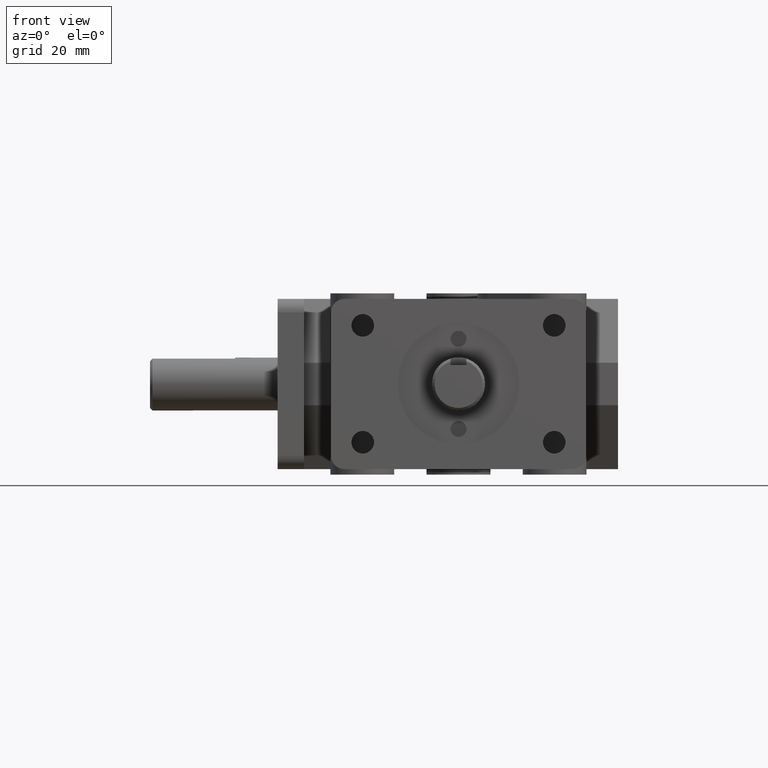
[diagram: clean part render]
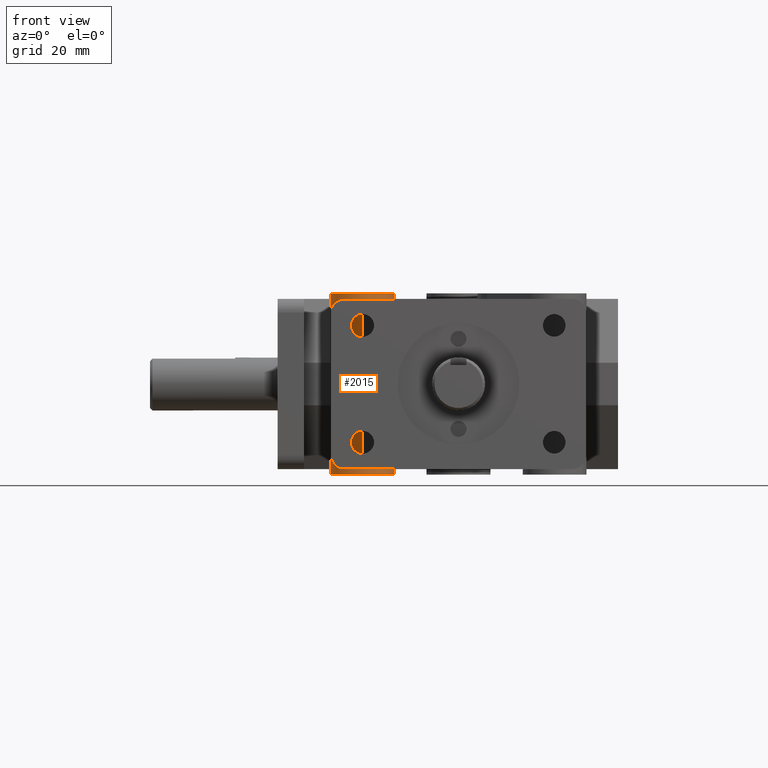
[diagram: same view with one face highlighted and labeled with its STEP entity id]
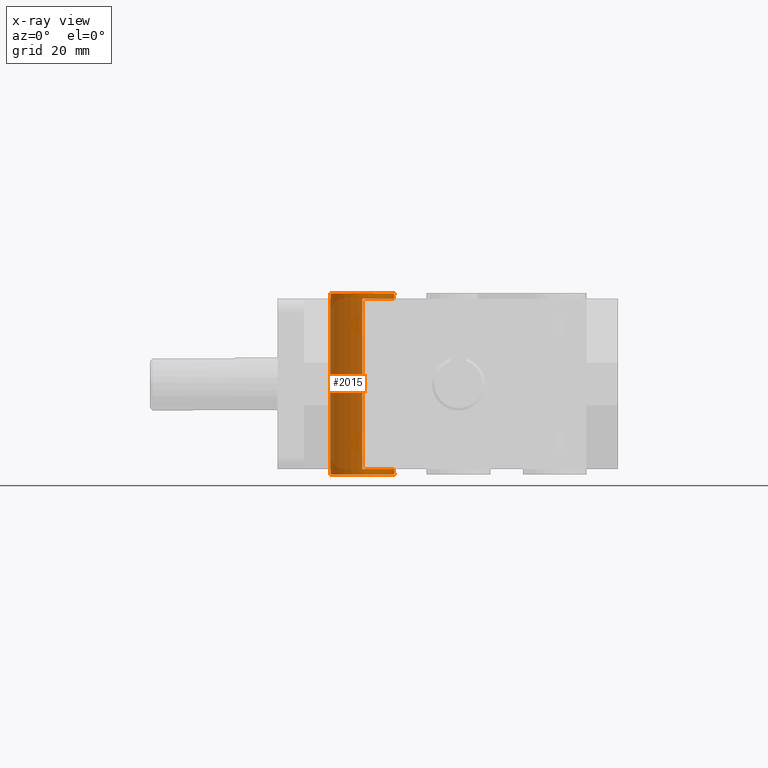
[diagram: x-ray of the same camera — body ghosted, the highlighted face saturated]
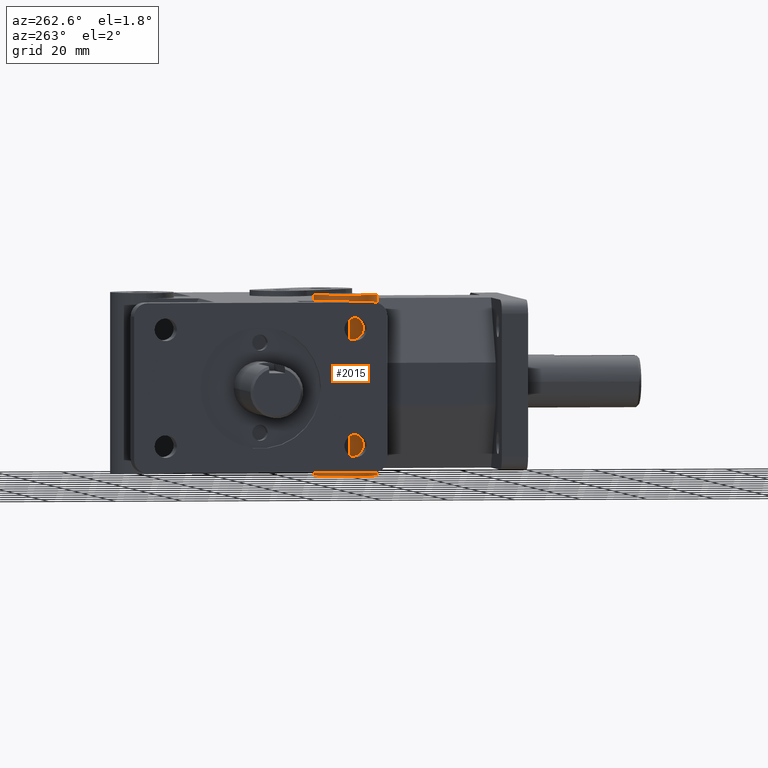
[diagram: same view with one face highlighted and labeled with its STEP entity id]
A machine part, front view. The second image highlights one B-rep face of the part: STEP entity #2015.
The next image is the same camera in x-ray: the body ghosted, the highlighted face saturated — about 80% of this face is hidden behind the body in this view.
A second angle (auxiliary view) of the same face is appended — the face is thin or edge-on in the first view.
In plain terms, the highlighted cylindrical surface (bore or boss wall) has radius 9.525 mm, axis along (0, 0, -1).
Its self-contained STEP definition (entity closure, byte-faithful):
#233=FACE_OUTER_BOUND('',#376,.T.);
#376=EDGE_LOOP('',(#1838,#1839,#1840,#1841,#1842,#1843,#1844,#1845,#1846,
#1847));
#568=LINE('',#3384,#759);
#569=LINE('',#3386,#760);
#570=LINE('',#3387,#761);
#571=LINE('',#3388,#762);
#759=VECTOR('',#2794,1.);
#760=VECTOR('',#2797,0.375);
#761=VECTOR('',#2798,1.);
#762=VECTOR('',#2799,0.375);
#812=CIRCLE('',#2110,0.375);
#815=CIRCLE('',#2115,0.375);
#847=CIRCLE('',#2204,0.375);
#848=CIRCLE('',#2206,0.375);
#930=VERTEX_POINT('',#3018);
#931=VERTEX_POINT('',#3020);
#941=VERTEX_POINT('',#3045);
#942=VERTEX_POINT('',#3047);
#1032=VERTEX_POINT('',#3349);
#1033=VERTEX_POINT('',#3352);
#1133=EDGE_CURVE('',#930,#931,#812,.T.);
#1147=EDGE_CURVE('',#941,#942,#815,.T.);
#1294=EDGE_CURVE('',#1032,#1032,#847,.T.);
#1295=EDGE_CURVE('',#1033,#1033,#848,.T.);
#1309=EDGE_CURVE('',#930,#942,#568,.T.);
#1310=EDGE_CURVE('',#1033,#942,#569,.T.);
#1311=EDGE_CURVE('',#931,#941,#570,.T.);
#1312=EDGE_CURVE('',#930,#1032,#571,.T.);
#1838=ORIENTED_EDGE('',*,*,#1295,.T.);
#1839=ORIENTED_EDGE('',*,*,#1310,.T.);
#1840=ORIENTED_EDGE('',*,*,#1147,.F.);
#1841=ORIENTED_EDGE('',*,*,#1311,.F.);
#1842=ORIENTED_EDGE('',*,*,#1133,.F.);
#1843=ORIENTED_EDGE('',*,*,#1312,.T.);
#1844=ORIENTED_EDGE('',*,*,#1294,.T.);
#1845=ORIENTED_EDGE('',*,*,#1312,.F.);
#1846=ORIENTED_EDGE('',*,*,#1309,.T.);
#1847=ORIENTED_EDGE('',*,*,#1310,.F.);
#1910=CYLINDRICAL_SURFACE('',#2224,0.375);
#2015=ADVANCED_FACE('',(#233),#1910,.T.);
#2110=AXIS2_PLACEMENT_3D('',#3021,#2433,#2434);
#2115=AXIS2_PLACEMENT_3D('',#3048,#2454,#2455);
#2204=AXIS2_PLACEMENT_3D('',#3350,#2743,#2744);
#2206=AXIS2_PLACEMENT_3D('',#3353,#2747,#2748);
#2224=AXIS2_PLACEMENT_3D('',#3385,#2795,#2796);
#2433=DIRECTION('center_axis',(0.,0.,-1.));
#2434=DIRECTION('ref_axis',(1.,0.,0.));
#2454=DIRECTION('center_axis',(0.,0.,1.));
#2455=DIRECTION('ref_axis',(1.,0.,0.));
#2743=DIRECTION('center_axis',(0.,0.,-1.));
#2744=DIRECTION('ref_axis',(1.,0.,0.));
#2747=DIRECTION('center_axis',(0.,0.,1.));
#2748=DIRECTION('ref_axis',(1.,0.,0.));
#2794=DIRECTION('',(0.,0.,-1.));
#2795=DIRECTION('center_axis',(0.,0.,-1.));
#2796=DIRECTION('ref_axis',(1.,0.,0.));
#2797=DIRECTION('',(0.,0.,1.));
#2798=DIRECTION('',(0.,0.,-1.));
#2799=DIRECTION('',(0.,0.,1.));
#3018=CARTESIAN_POINT('',(-1.505,2.12,1.));
#3020=CARTESIAN_POINT('',(-1.13,1.745,1.));
#3021=CARTESIAN_POINT('Origin',(-1.13,2.12,1.));
#3045=CARTESIAN_POINT('',(-1.13,1.745,-1.));
#3047=CARTESIAN_POINT('',(-1.505,2.12,-1.));
#3048=CARTESIAN_POINT('Origin',(-1.13,2.12,-1.));
#3349=CARTESIAN_POINT('',(-1.505,2.12,1.065));
#3350=CARTESIAN_POINT('Origin',(-1.13,2.12,1.065));
#3352=CARTESIAN_POINT('',(-1.505,2.12,-1.065));
#3353=CARTESIAN_POINT('Origin',(-1.13,2.12,-1.065));
#3384=CARTESIAN_POINT('',(-1.505,2.12,0.));
#3385=CARTESIAN_POINT('Origin',(-1.13,2.12,0.));
#3386=CARTESIAN_POINT('',(-1.505,2.12,0.));
#3387=CARTESIAN_POINT('',(-1.13,1.745,0.));
#3388=CARTESIAN_POINT('',(-1.505,2.12,0.));